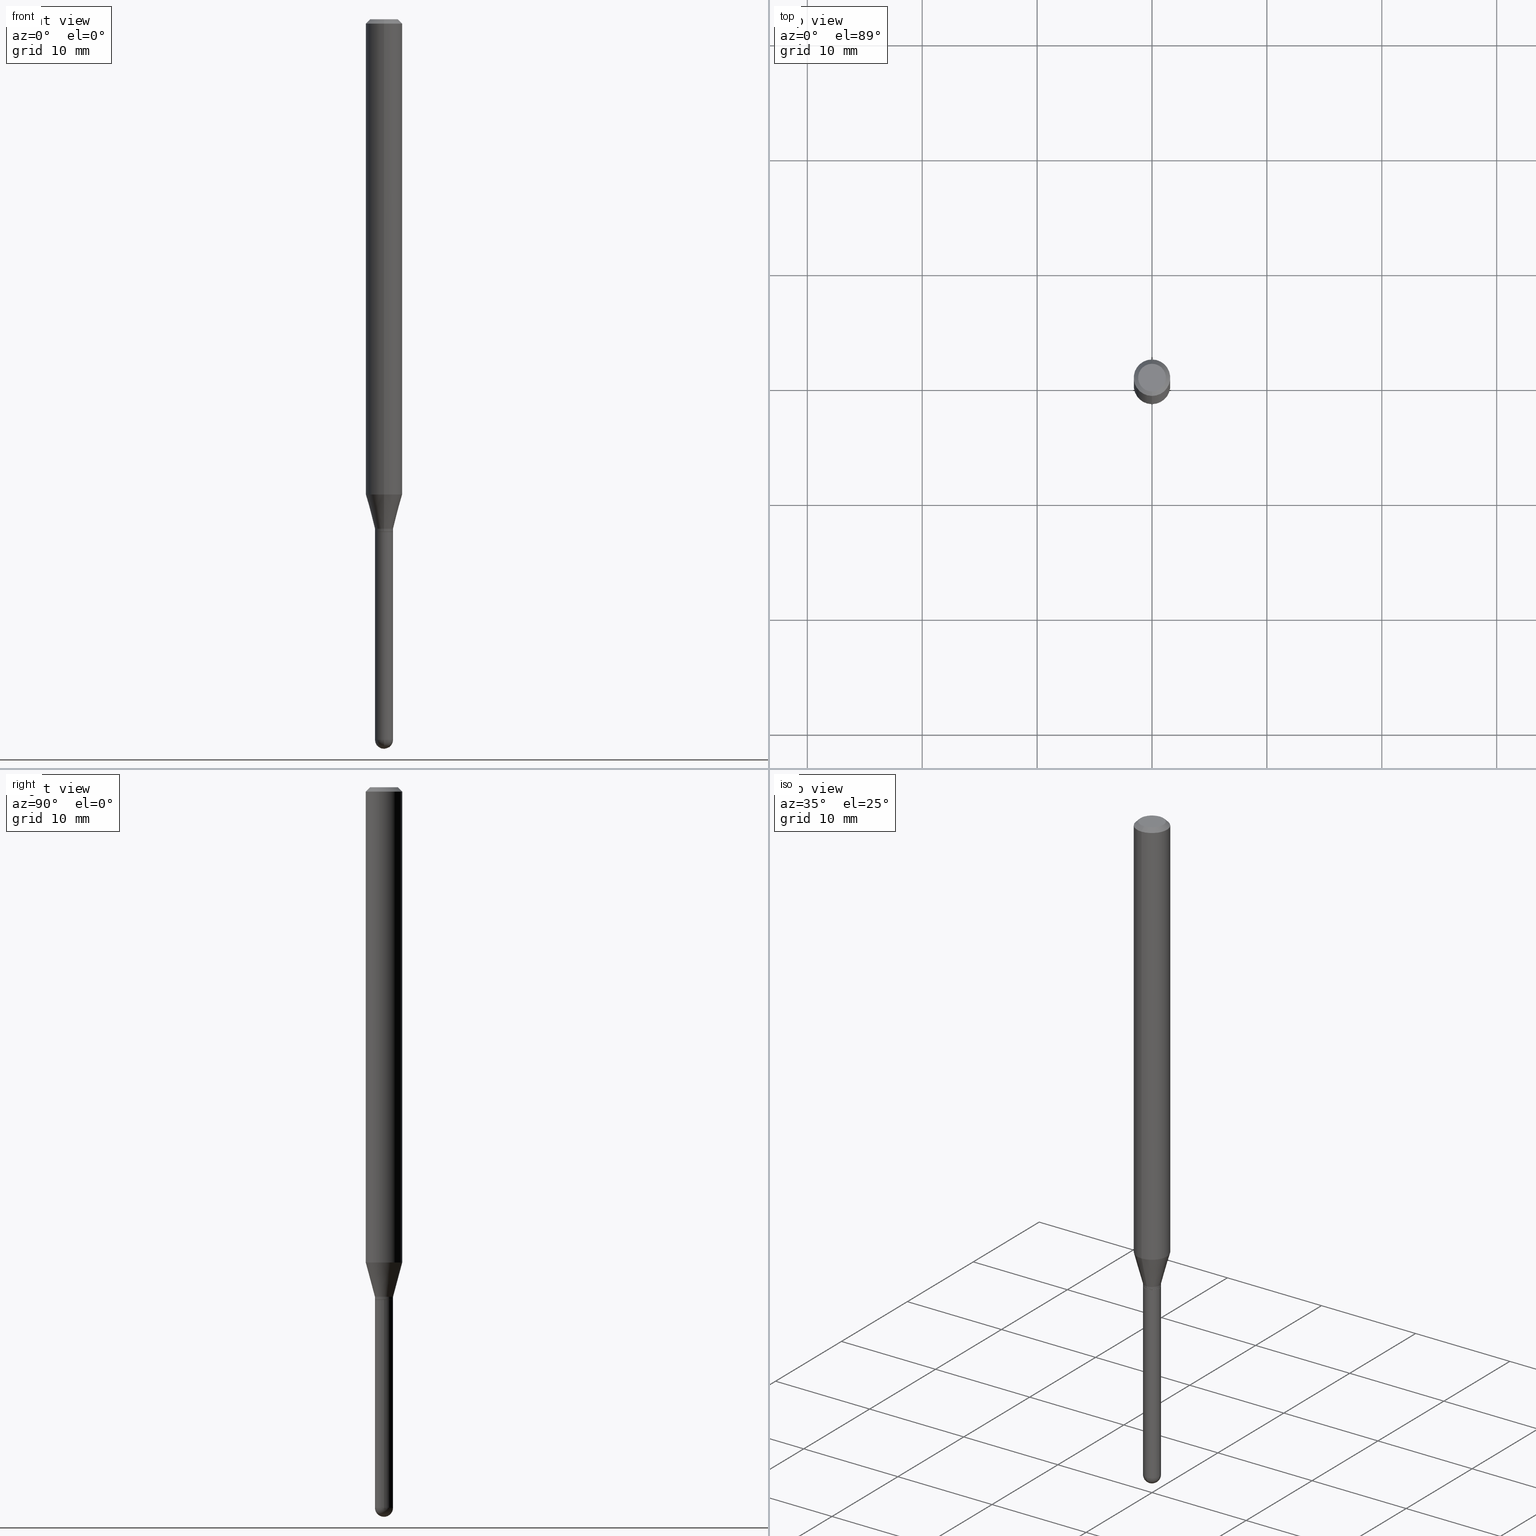
[diagram: canonical four-view strip — front | top / right | iso, engineering-drawing reading convention]
A machine part, canonical four-view strip (front | top / right | iso — engineering-drawing reading convention). The complete STEP part file that produces these views, byte-faithful:
ISO-10303-21;
HEADER;
FILE_DESCRIPTION (( 'STEP AP203' ),
    '1' );
FILE_NAME ('02786.STEP',
    '2024-03-07T21:31:25',
    ( '' ),
    ( '' ),
    'SwSTEP 2.0',
    'SolidWorks 2023',
    '' );
FILE_SCHEMA (( 'CONFIG_CONTROL_DESIGN' ));
ENDSEC;

DATA;
#1 = APPROVAL_PERSON_ORGANIZATION ( #100, #16, #207 ) ;
#2 = EDGE_LOOP ( 'NONE', ( #249, #487, #213, #205 ) ) ;
#3 = LINE ( 'NONE', #278, #430 ) ;
#4 = ORIENTED_EDGE ( 'NONE', *, *, #309, .T. ) ;
#5 = MANIFOLD_SOLID_BREP ( 'Body-Move/Copy2[2]', #175 ) ;
#6 = APPLICATION_CONTEXT ( 'configuration controlled 3d designs of mechanical parts and assemblies' ) ;
#7 = DIRECTION ( 'NONE',  ( -6.982962677686265922E-15, -1.000000000000000000, 3.491507680824188299E-15 ) ) ;
#8 = ORIENTED_EDGE ( 'NONE', *, *, #325, .F. ) ;
#9 = CIRCLE ( 'NONE', #117, 0.03099999999999992345 ) ;
#10 = DIRECTION ( 'NONE',  ( -2.445468806185136597E-29, 3.491481338843145583E-15, 1.000000000000000000 ) ) ;
#11 = ORIENTED_EDGE ( 'NONE', *, *, #348, .T. ) ;
#12 = LOCAL_TIME ( 16, 31, 25.00000000000000000, #95 ) ;
#13 = EDGE_LOOP ( 'NONE', ( #51, #90 ) ) ;
#14 = VERTEX_POINT ( 'NONE', #68 ) ;
#15 = AXIS2_PLACEMENT_3D ( 'NONE', #427, #466, #35 ) ;
#16 = APPROVAL ( #293, 'UNSPECIFIED' ) ;
#17 = CARTESIAN_POINT ( 'NONE',  ( 0.000000000000000000, 0.000000000000000000, 0.000000000000000000 ) ) ;
#18 = DIRECTION ( 'NONE',  ( -1.000000000000000000, 6.982962677686265922E-15, -4.883557194083112340E-29 ) ) ;
#19 = CALENDAR_DATE ( 2024, 7, 3 ) ;
#20 = EDGE_CURVE ( 'NONE', #472, #400, #196, .T. ) ;
#21 = DIRECTION ( 'NONE',  ( -2.445450411678088822E-29, 3.491507680824188299E-15, 1.000000000000000000 ) ) ;
#22 = PERSON_AND_ORGANIZATION ( #327, #338 ) ;
#23 = AXIS2_PLACEMENT_3D ( 'NONE', #232, #223, #351 ) ;
#24 = CYLINDRICAL_SURFACE ( 'NONE', #313, 0.03099999999999992345 ) ;
#25 = CALENDAR_DATE ( 2024, 7, 3 ) ;
#26 = DIRECTION ( 'NONE',  ( 1.000000000000000000, -6.982962677686270655E-15, 0.000000000000000000 ) ) ;
#27 = DIRECTION ( 'NONE',  ( 2.445450411678088822E-29, -3.491507680824188299E-15, -1.000000000000000000 ) ) ;
#28 = LINE ( 'NONE', #345, #503 ) ;
#29 = CARTESIAN_POINT ( 'NONE',  ( 0.000000000000000000, 0.000000000000000000, 0.000000000000000000 ) ) ;
#30 = CARTESIAN_POINT ( 'NONE',  ( 4.440892098501026509E-16, 0.06249999999999995143, -0.01500000000000054588 ) ) ;
#31 = VECTOR ( 'NONE', #421, 39.37007874015748143 ) ;
#32 = CIRCLE ( 'NONE', #370, 0.06250000000000000000 ) ;
#33 = DIRECTION ( 'NONE',  ( -6.982962677686266711E-15, -1.000000000000000000, 3.491507680824188693E-15 ) ) ;
#34 = CARTESIAN_POINT ( 'NONE',  ( 3.321787289678878569E-16, 0.03099999999999382069, -1.745999999999999996 ) ) ;
#35 = DIRECTION ( 'NONE',  ( 1.000000000000000000, -6.982962677686270655E-15, 0.000000000000000000 ) ) ;
#36 = LINE ( 'NONE', #391, #481 ) ;
#37 = FACE_OUTER_BOUND ( 'NONE', #124, .T. ) ;
#38 = AXIS2_PLACEMENT_3D ( 'NONE', #291, #480, #97 ) ;
#39 = DIRECTION ( 'NONE',  ( 1.839019923739598738E-15, 0.2588190451025247363, 0.9659258262890673130 ) ) ;
#40 = FACE_OUTER_BOUND ( 'NONE', #292, .T. ) ;
#41 = VERTEX_POINT ( 'NONE', #416 ) ;
#42 = DIRECTION ( 'NONE',  ( 2.445450411678088822E-29, -3.491507680824188299E-15, -1.000000000000000000 ) ) ;
#43 = ORIENTED_EDGE ( 'NONE', *, *, #242, .F. ) ;
#44 = DIRECTION ( 'NONE',  ( 4.937700262164548042E-15, 0.7071067811865451302, -0.7071067811865499042 ) ) ;
#45 = EDGE_LOOP ( 'NONE', ( #96, #285, #176, #394 ) ) ;
#46 = AXIS2_PLACEMENT_3D ( 'NONE', #440, #174, #426 ) ;
#47 = CARTESIAN_POINT ( 'NONE',  ( 6.035211466974647334E-29, -8.624263830681084699E-15, -2.469000000000000306 ) ) ;
#48 = EDGE_CURVE ( 'NONE', #255, #14, #301, .T. ) ;
#49 = ORIENTED_EDGE ( 'NONE', *, *, #170, .T. ) ;
#50 = CIRCLE ( 'NONE', #321, 0.03099999999999999978 ) ;
#51 = ORIENTED_EDGE ( 'NONE', *, *, #309, .F. ) ;
#52 = CC_DESIGN_PERSON_AND_ORGANIZATION_ASSIGNMENT ( #491, #453, ( #203 ) ) ;
#53 = DIRECTION ( 'NONE',  ( -6.982962677686265922E-15, -1.000000000000000000, 3.483106191921935554E-15 ) ) ;
#54 = AXIS2_PLACEMENT_3D ( 'NONE', #47, #264, #111 ) ;
#55 = VERTEX_POINT ( 'NONE', #34 ) ;
#56 = AXIS2_PLACEMENT_3D ( 'NONE', #448, #134, #102 ) ;
#57 = DIRECTION ( 'NONE',  ( -1.000000000000000000, 6.982962677686265922E-15, -4.876176775795935793E-29 ) ) ;
#58 = CARTESIAN_POINT ( 'NONE',  ( 6.035211466974647334E-29, -8.624263830681084699E-15, -2.469000000000000306 ) ) ;
#59 =( LENGTH_UNIT ( ) NAMED_UNIT ( * ) SI_UNIT ( $, .METRE. ) );
#60 = CARTESIAN_POINT ( 'NONE',  ( -2.164718430082737148E-16, -0.03099999999999992345, 1.082367381055495672E-16 ) ) ;
#61 = EDGE_CURVE ( 'NONE', #432, #55, #110, .T. ) ;
#62 = CONICAL_SURFACE ( 'NONE', #46, 0.03099999999999992345, 0.2617993877991500740 ) ;
#63 = DIRECTION ( 'NONE',  ( -2.445468806185136597E-29, 3.491481338843145583E-15, 1.000000000000000000 ) ) ;
#64 = CARTESIAN_POINT ( 'NONE',  ( -2.129803616693881339E-16, -0.03050000000000612638, -1.756000000000000005 ) ) ;
#65 = DIRECTION ( 'NONE',  ( -2.445468806185136877E-29, 3.491481338843145188E-15, 1.000000000000000000 ) ) ;
#66 = CARTESIAN_POINT ( 'NONE',  ( 6.037862482471103495E-29, -8.620467425603728566E-15, -2.469000000000000306 ) ) ;
#67 = ADVANCED_FACE ( 'NONE', ( #464 ), #346, .T. ) ;
#68 = CARTESIAN_POINT ( 'NONE',  ( -2.164718430082309931E-16, -0.03100000000000601580, -1.745999999999999996 ) ) ;
#69 = CC_DESIGN_DATE_AND_TIME_ASSIGNMENT ( #445, #103, ( #206 ) ) ;
#70 = EDGE_CURVE ( 'NONE', #441, #237, #268, .T. ) ;
#71 = CARTESIAN_POINT ( 'NONE',  ( 0.03099999999999999978, -2.164718430082742572E-16, 1.511614800496739984E-30 ) ) ;
#72 = DIRECTION ( 'NONE',  ( -2.445450411678088822E-29, 3.491507680824188299E-15, 1.000000000000000000 ) ) ;
#73 = AXIS2_PLACEMENT_3D ( 'NONE', #219, #378, #271 ) ;
#74 = VECTOR ( 'NONE', #383, 39.37007874015748143 ) ;
#75 = ADVANCED_FACE ( 'NONE', ( #329 ), #62, .T. ) ;
#76 = DIRECTION ( 'NONE',  ( -2.445450411678088822E-29, 3.491507680824188299E-15, 1.000000000000000000 ) ) ;
#77 = CARTESIAN_POINT ( 'NONE',  ( 4.269756418789942781E-29, -6.096172410719032689E-15, -1.745999999999999996 ) ) ;
#78 = LINE ( 'NONE', #433, #91 ) ;
#79 = DIRECTION ( 'NONE',  ( -4.851104656540964275E-15, -0.7071067811865500152, -0.7071067811865450192 ) ) ;
#80 = PRODUCT ( '02786', '02786', '', ( #350 ) ) ;
#81 = CARTESIAN_POINT ( 'NONE',  ( 0.000000000000000000, 0.000000000000000000, 0.000000000000000000 ) ) ;
#82 = DIRECTION ( 'NONE',  ( -6.982962677686266711E-15, -1.000000000000000000, 3.491507680824188693E-15 ) ) ;
#83 = ORIENTED_EDGE ( 'NONE', *, *, #234, .T. ) ;
#84 = CONICAL_SURFACE ( 'NONE', #422, 0.06250000000000000000, 0.7853981633974483900 ) ;
#85 = CARTESIAN_POINT ( 'NONE',  ( -0.03099999999999999978, -7.155486080220514781E-15, -1.756000000000000005 ) ) ;
#86 = ORIENTED_EDGE ( 'NONE', *, *, #483, .T. ) ;
#87 = FACE_OUTER_BOUND ( 'NONE', #245, .T. ) ;
#88 = ORIENTED_EDGE ( 'NONE', *, *, #380, .F. ) ;
#89 = EDGE_CURVE ( 'NONE', #55, #405, #36, .T. ) ;
#90 = ORIENTED_EDGE ( 'NONE', *, *, #505, .F. ) ;
#91 = VECTOR ( 'NONE', #44, 39.37007874015748143 ) ;
#92 = EDGE_CURVE ( 'NONE', #405, #216, #319, .T. ) ;
#93 = ORIENTED_EDGE ( 'NONE', *, *, #184, .F. ) ;
#94 = CC_DESIGN_APPROVAL ( #224, ( #203 ) ) ;
#95 = COORDINATED_UNIVERSAL_TIME_OFFSET ( 5, 0, .BEHIND. ) ;
#96 = ORIENTED_EDGE ( 'NONE', *, *, #89, .F. ) ;
#97 = DIRECTION ( 'NONE',  ( -6.982962677686265922E-15, -1.000000000000000000, 4.370956789862821150E-15 ) ) ;
#98 = PLANE ( 'NONE',  #408 ) ;
#99 = VERTEX_POINT ( 'NONE', #151 ) ;
#100 = PERSON_AND_ORGANIZATION ( #327, #338 ) ;
#101 = CIRCLE ( 'NONE', #23, 0.03099999999999999978 ) ;
#102 = DIRECTION ( 'NONE',  ( -6.982962677686265922E-15, -1.000000000000000000, 0.000000000000000000 ) ) ;
#103 = DATE_TIME_ROLE ( 'creation_date' ) ;
#104 = UNCERTAINTY_MEASURE_WITH_UNIT (LENGTH_MEASURE( 1.000000000000000082E-05 ), #373, 'distance_accuracy_value', 'NONE');
#105 = FACE_OUTER_BOUND ( 'NONE', #360, .T. ) ;
#106 = ORIENTED_EDGE ( 'NONE', *, *, #366, .T. ) ;
#107 = FACE_OUTER_BOUND ( 'NONE', #484, .T. ) ;
#108 = ORIENTED_EDGE ( 'NONE', *, *, #483, .F. ) ;
#109 = AXIS2_PLACEMENT_3D ( 'NONE', #419, #344, #142 ) ;
#110 = LINE ( 'NONE', #152, #31 ) ;
#111 = DIRECTION ( 'NONE',  ( 6.982962677686265922E-15, 1.000000000000000000, 0.000000000000000000 ) ) ;
#112 = DIRECTION ( 'NONE',  ( -6.982962677686265922E-15, -1.000000000000000000, 0.000000000000000000 ) ) ;
#113 = DIRECTION ( 'NONE',  ( -6.982962677686265922E-15, -1.000000000000000000, 3.491507680824188299E-15 ) ) ;
#114 = EDGE_CURVE ( 'NONE', #55, #14, #225, .T. ) ;
#115 = DIRECTION ( 'NONE',  ( -2.445450411678088822E-29, 3.491507680824188299E-15, 1.000000000000000000 ) ) ;
#116 = FACE_OUTER_BOUND ( 'NONE', #470, .T. ) ;
#117 = AXIS2_PLACEMENT_3D ( 'NONE', #460, #72, #227 ) ;
#118 = ORIENTED_EDGE ( 'NONE', *, *, #92, .T. ) ;
#119 = DIRECTION ( 'NONE',  ( -1.807323732225328562E-15, -0.2588190451025179639, 0.9659258262890690894 ) ) ;
#120 = CARTESIAN_POINT ( 'NONE',  ( 4.294210922906724285E-29, -6.131087487527274923E-15, -1.756000000000000005 ) ) ;
#121 = EDGE_CURVE ( 'NONE', #450, #240, #101, .T. ) ;
#122 = ORIENTED_EDGE ( 'NONE', *, *, #267, .F. ) ;
#123 = FACE_OUTER_BOUND ( 'NONE', #159, .T. ) ;
#124 = EDGE_LOOP ( 'NONE', ( #303, #11, #88, #279 ) ) ;
#125 = LOCAL_TIME ( 16, 31, 25.00000000000000000, #141 ) ;
#126 = VERTEX_POINT ( 'NONE', #305 ) ;
#127 = EDGE_CURVE ( 'NONE', #255, #432, #9, .T. ) ;
#128 = DIRECTION ( 'NONE',  ( 5.024295867788190974E-15, 0.7071067811865681119, 0.7071067811865270336 ) ) ;
#129 = VERTEX_POINT ( 'NONE', #308 ) ;
#130 = ORIENTED_EDGE ( 'NONE', *, *, #127, .T. ) ;
#131 = AXIS2_PLACEMENT_3D ( 'NONE', #314, #335, #488 ) ;
#132 = ORIENTED_EDGE ( 'NONE', *, *, #160, .F. ) ;
#133 = CARTESIAN_POINT ( 'NONE',  ( 0.000000000000000000, 0.000000000000000000, 0.000000000000000000 ) ) ;
#134 = DIRECTION ( 'NONE',  ( -2.445450411678088822E-29, 3.491507680824188299E-15, 1.000000000000000000 ) ) ;
#135 = APPLICATION_CONTEXT ( 'configuration controlled 3d designs of mechanical parts and assemblies' ) ;
#136 = VECTOR ( 'NONE', #473, 39.37007874015748143 ) ;
#137 = EDGE_CURVE ( 'NONE', #432, #255, #399, .T. ) ;
#138 = CALENDAR_DATE ( 2024, 7, 3 ) ;
#139 = CARTESIAN_POINT ( 'NONE',  ( 0.000000000000000000, 0.000000000000000000, 0.000000000000000000 ) ) ;
#140 = FACE_OUTER_BOUND ( 'NONE', #337, .T. ) ;
#141 = COORDINATED_UNIVERSAL_TIME_OFFSET ( 5, 0, .BEHIND. ) ;
#142 = DIRECTION ( 'NONE',  ( -6.982962677686265922E-15, -1.000000000000000000, 0.000000000000000000 ) ) ;
#143 = CC_DESIGN_PERSON_AND_ORGANIZATION_ASSIGNMENT ( #290, #446, ( #203 ) ) ;
#144 = DATE_AND_TIME ( #502, #467 ) ;
#145 = DIRECTION ( 'NONE',  ( -6.982962677686265922E-15, -1.000000000000000000, 3.483106191921935554E-15 ) ) ;
#146 = DIRECTION ( 'NONE',  ( -6.982962677686265922E-15, -1.000000000000000000, 3.491507680824188299E-15 ) ) ;
#147 = ORIENTED_EDGE ( 'NONE', *, *, #380, .T. ) ;
#148 = CARTESIAN_POINT ( 'NONE',  ( 4.440892098501021578E-16, 0.06249999999999429623, -1.628440399561580598 ) ) ;
#149 = DIRECTION ( 'NONE',  ( -2.445450411678088822E-29, 3.491507680824188299E-15, 1.000000000000000000 ) ) ;
#150 = LINE ( 'NONE', #504, #74 ) ;
#151 = CARTESIAN_POINT ( 'NONE',  ( 0.03099999999999999978, -7.592226171314421154E-15, -2.469000000000000306 ) ) ;
#152 = CARTESIAN_POINT ( 'NONE',  ( 2.202682480856304644E-16, 0.03099999999999992345, -1.082367381055495672E-16 ) ) ;
#153 = CARTESIAN_POINT ( 'NONE',  ( -2.164718430082314861E-16, -0.03100000000000615805, -1.755500000000000060 ) ) ;
#154 = VECTOR ( 'NONE', #128, 39.37007874015748143 ) ;
#155 = EDGE_CURVE ( 'NONE', #129, #362, #295, .T. ) ;
#156 = AXIS2_PLACEMENT_3D ( 'NONE', #81, #311, #113 ) ;
#157 = DIRECTION ( 'NONE',  ( -6.982962677686265922E-15, -1.000000000000000000, 0.000000000000000000 ) ) ;
#158 = SPHERICAL_SURFACE ( 'NONE', #131, 0.03099999999999960773 ) ;
#159 = EDGE_LOOP ( 'NONE', ( #8, #287, #436, #86 ) ) ;
#160 = EDGE_CURVE ( 'NONE', #99, #450, #418, .T. ) ;
#161 = DIRECTION ( 'NONE',  ( -2.445468806185136877E-29, 3.491481338843145188E-15, 1.000000000000000000 ) ) ;
#162 = ORIENTED_EDGE ( 'NONE', *, *, #61, .T. ) ;
#163 = EDGE_LOOP ( 'NONE', ( #204, #367, #395, #132, #147 ) ) ;
#164 = COORDINATED_UNIVERSAL_TIME_OFFSET ( 5, 0, .BEHIND. ) ;
#165 = ADVANCED_FACE ( 'NONE', ( #187 ), #220, .F. ) ;
#166 = CIRCLE ( 'NONE', #462, 0.03099999999999999978 ) ;
#167 = DIRECTION ( 'NONE',  ( 1.000000000000000000, -6.982962677686266711E-15, 4.876176775795935232E-29 ) ) ;
#168 = LINE ( 'NONE', #282, #202 ) ;
#169 = AXIS2_PLACEMENT_3D ( 'NONE', #29, #191, #456 ) ;
#170 = EDGE_CURVE ( 'NONE', #126, #432, #457, .T. ) ;
#171 = ORIENTED_EDGE ( 'NONE', *, *, #48, .F. ) ;
#172 = ORIENTED_EDGE ( 'NONE', *, *, #184, .T. ) ;
#173 = MANIFOLD_SOLID_BREP ( 'Body-Move/Copy2[1]', #376 ) ;
#174 = DIRECTION ( 'NONE',  ( -2.445450411678088822E-29, 3.491507680824188299E-15, 1.000000000000000000 ) ) ;
#175 = CLOSED_SHELL ( 'NONE', ( #463, #67, #479, #257, #435, #75, #425, #253, #193, #165, #217, #506 ) ) ;
#176 = ORIENTED_EDGE ( 'NONE', *, *, #270, .T. ) ;
#177 = AXIS2_PLACEMENT_3D ( 'NONE', #133, #381, #444 ) ;
#178 = DIRECTION ( 'NONE',  ( -6.982962677686265922E-15, -1.000000000000000000, 3.491507680824188299E-15 ) ) ;
#179 = APPLICATION_PROTOCOL_DEFINITION ( 'international standard', 'config_control_design', 1994, #6 ) ;
#180 = APPROVAL_DATE_TIME ( #485, #224 ) ;
#181 = AXIS2_PLACEMENT_3D ( 'NONE', #192, #115, #112 ) ;
#182 = AXIS2_PLACEMENT_3D ( 'NONE', #261, #489, #415 ) ;
#183 = AXIS2_PLACEMENT_3D ( 'NONE', #58, #18, #298 ) ;
#184 = EDGE_CURVE ( 'NONE', #41, #237, #166, .T. ) ;
#185 = SPHERICAL_SURFACE ( 'NONE', #183, 0.03099999999999960773 ) ;
#186 = CARTESIAN_POINT ( 'NONE',  ( 2.202682480856726685E-16, 0.03099999999999368538, -1.755500000000000060 ) ) ;
#187 = FACE_OUTER_BOUND ( 'NONE', #13, .T. ) ;
#188 = CARTESIAN_POINT ( 'NONE',  ( 4.294243223661099859E-29, -6.131041231008564292E-15, -1.756000000000000005 ) ) ;
#189 = AXIS2_PLACEMENT_3D ( 'NONE', #417, #222, #145 ) ;
#190 = APPROVAL_PERSON_ORGANIZATION ( #22, #224, #214 ) ;
#191 = DIRECTION ( 'NONE',  ( 0.000000000000000000, 0.000000000000000000, 1.000000000000000000 ) ) ;
#192 = CARTESIAN_POINT ( 'NONE',  ( 4.294210922906724285E-29, -6.131087487527274923E-15, -1.756000000000000005 ) ) ;
#193 = ADVANCED_FACE ( 'NONE', ( #40 ), #469, .F. ) ;
#194 = CYLINDRICAL_SURFACE ( 'NONE', #510, 0.06250000000000000000 ) ;
#195 = ORIENTED_EDGE ( 'NONE', *, *, #366, .F. ) ;
#196 = CIRCLE ( 'NONE', #189, 0.06250000000000000000 ) ;
#197 = CARTESIAN_POINT ( 'NONE',  ( -4.364351673553520291E-16, -0.06250000000000571765, -1.628440399561579932 ) ) ;
#198 = ORIENTED_EDGE ( 'NONE', *, *, #505, .T. ) ;
#199 = DIRECTION ( 'NONE',  ( 2.445450411678088542E-29, -3.491507680824188299E-15, -1.000000000000000000 ) ) ;
#200 = ORIENTED_EDGE ( 'NONE', *, *, #270, .F. ) ;
#201 = ORIENTED_EDGE ( 'NONE', *, *, #348, .F. ) ;
#202 = VECTOR ( 'NONE', #119, 39.37007874015748854 ) ;
#203 = PRODUCT_DEFINITION_FORMATION_WITH_SPECIFIED_SOURCE ( 'ANY', '', #80, .NOT_KNOWN. ) ;
#204 = ORIENTED_EDGE ( 'NONE', *, *, #385, .T. ) ;
#205 = ORIENTED_EDGE ( 'NONE', *, *, #229, .F. ) ;
#206 = PRODUCT_DEFINITION ( 'UNKNOWN', '', #203, #411 ) ;
#207 = APPROVAL_ROLE ( '' ) ;
#208 = AXIS2_PLACEMENT_3D ( 'NONE', #382, #343, #146 ) ;
#209 = FACE_OUTER_BOUND ( 'NONE', #320, .T. ) ;
#210 = EDGE_LOOP ( 'NONE', ( #122, #118, #251, #108 ) ) ;
#211 = APPROVAL_PERSON_ORGANIZATION ( #265, #412, #461 ) ;
#212 = DIRECTION ( 'NONE',  ( 6.982962677686265922E-15, 1.000000000000000000, -3.483106191921935554E-15 ) ) ;
#213 = ORIENTED_EDGE ( 'NONE', *, *, #20, .T. ) ;
#214 = APPROVAL_ROLE ( '' ) ;
#215 = DATE_TIME_ROLE ( 'classification_date' ) ;
#216 = VERTEX_POINT ( 'NONE', #197 ) ;
#217 = ADVANCED_FACE ( 'NONE', ( #87 ), #310, .T. ) ;
#218 = AXIS2_PLACEMENT_3D ( 'NONE', #120, #243, #284 ) ;
#219 = CARTESIAN_POINT ( 'NONE',  ( 6.035211466974647334E-29, -8.624263830681084699E-15, -2.469000000000000306 ) ) ;
#220 = PLANE ( 'NONE',  #208 ) ;
#221 = PERSON_AND_ORGANIZATION_ROLE ( 'design_owner' ) ;
#222 = DIRECTION ( 'NONE',  ( -2.445450411678088822E-29, 3.491507680824188299E-15, 1.000000000000000000 ) ) ;
#223 = DIRECTION ( 'NONE',  ( -2.445468806185136597E-29, 3.491481338843145583E-15, 1.000000000000000000 ) ) ;
#224 = APPROVAL ( #451, 'UNSPECIFIED' ) ;
#225 = CIRCLE ( 'NONE', #109, 0.03099999999999992345 ) ;
#226 = FACE_OUTER_BOUND ( 'NONE', #210, .T. ) ;
#227 = DIRECTION ( 'NONE',  ( -6.982962677686265922E-15, -1.000000000000000000, 0.000000000000000000 ) ) ;
#228 = SECURITY_CLASSIFICATION ( '', '', #289 ) ;
#229 = EDGE_CURVE ( 'NONE', #362, #400, #78, .T. ) ;
#230 = DIRECTION ( 'NONE',  ( -6.982962677686265922E-15, -1.000000000000000000, 4.370956789862821150E-15 ) ) ;
#231 = EDGE_CURVE ( 'NONE', #237, #99, #238, .T. ) ;
#232 = CARTESIAN_POINT ( 'NONE',  ( 4.294243223661099859E-29, -6.131041231008564292E-15, -1.756000000000000005 ) ) ;
#233 = DIRECTION ( 'NONE',  ( -2.445450411678088822E-29, 3.491507680824188299E-15, 1.000000000000000000 ) ) ;
#234 = EDGE_CURVE ( 'NONE', #216, #405, #252, .T. ) ;
#235 = FACE_OUTER_BOUND ( 'NONE', #317, .T. ) ;
#236 = DIRECTION ( 'NONE',  ( 6.982962677686265922E-15, 1.000000000000000000, -3.491507680824188299E-15 ) ) ;
#237 = VERTEX_POINT ( 'NONE', #431 ) ;
#238 = CIRCLE ( 'NONE', #15, 0.03099999999999999978 ) ;
#239 = DIRECTION ( 'NONE',  ( 1.000000000000000000, -6.982962677686270655E-15, 0.000000000000000000 ) ) ;
#240 = VERTEX_POINT ( 'NONE', #85 ) ;
#241 = PERSON_AND_ORGANIZATION_ROLE ( 'creator' ) ;
#242 = EDGE_CURVE ( 'NONE', #41, #240, #3, .T. ) ;
#243 = DIRECTION ( 'NONE',  ( -2.445450411678088822E-29, 3.491507680824188299E-15, 1.000000000000000000 ) ) ;
#244 = ORIENTED_EDGE ( 'NONE', *, *, #234, .F. ) ;
#245 = EDGE_LOOP ( 'NONE', ( #397, #198, #326, #482 ) ) ;
#246 = VECTOR ( 'NONE', #79, 39.37007874015748143 ) ;
#247 = AXIS2_PLACEMENT_3D ( 'NONE', #77, #342, #157 ) ;
#248 = EDGE_CURVE ( 'NONE', #362, #129, #262, .T. ) ;
#249 = ORIENTED_EDGE ( 'NONE', *, *, #155, .F. ) ;
#250 = DIRECTION ( 'NONE',  ( 2.438088387897960049E-29, -3.491481338843145188E-15, -1.000000000000000000 ) ) ;
#251 = ORIENTED_EDGE ( 'NONE', *, *, #375, .T. ) ;
#252 = CIRCLE ( 'NONE', #300, 0.06250000000000000000 ) ;
#253 = ADVANCED_FACE ( 'NONE', ( #123 ), #84, .T. ) ;
#254 =( NAMED_UNIT ( * ) SI_UNIT ( $, .STERADIAN. ) SOLID_ANGLE_UNIT ( ) );
#255 = VERTEX_POINT ( 'NONE', #153 ) ;
#256 = LOCAL_TIME ( 16, 31, 25.00000000000000000, #164 ) ;
#257 = ADVANCED_FACE ( 'NONE', ( #428 ), #194, .T. ) ;
#258 = ORIENTED_EDGE ( 'NONE', *, *, #127, .F. ) ;
#259 = CYLINDRICAL_SURFACE ( 'NONE', #280, 0.03099999999999999978 ) ;
#260 = COORDINATED_UNIVERSAL_TIME_OFFSET ( 5, 0, .BEHIND. ) ;
#261 = CARTESIAN_POINT ( 'NONE',  ( 0.000000000000000000, 0.000000000000000000, 0.000000000000000000 ) ) ;
#262 = CIRCLE ( 'NONE', #354, 0.04749999999999999362 ) ;
#263 = CONICAL_SURFACE ( 'NONE', #247, 0.03099999999999992345, 0.2617993877991500740 ) ;
#264 = DIRECTION ( 'NONE',  ( 1.000000000000000000, -6.982962677686265922E-15, 4.883557194083112340E-29 ) ) ;
#265 = PERSON_AND_ORGANIZATION ( #327, #338 ) ;
#266 = CARTESIAN_POINT ( 'NONE',  ( 6.037862482471103495E-29, -8.620467425603728566E-15, -2.469000000000000306 ) ) ;
#267 = EDGE_CURVE ( 'NONE', #405, #400, #318, .T. ) ;
#268 = CIRCLE ( 'NONE', #73, 0.03099999999999960773 ) ;
#269 = CARTESIAN_POINT ( 'NONE',  ( 4.292988197700885799E-29, -6.129341733686862929E-15, -1.755500000000000060 ) ) ;
#270 = EDGE_CURVE ( 'NONE', #14, #216, #168, .T. ) ;
#271 = DIRECTION ( 'NONE',  ( -7.105427357601000281E-15, -1.000000000000000000, 0.000000000000000000 ) ) ;
#272 = CARTESIAN_POINT ( 'NONE',  ( 6.112346507714612851E-29, -8.730601549646543009E-15, -2.500000000000000000 ) ) ;
#273 = CARTESIAN_POINT ( 'NONE',  ( -4.287811248607203282E-16, -0.06250000000000005551, -0.01500000000000011047 ) ) ;
#274 = CC_DESIGN_DATE_AND_TIME_ASSIGNMENT ( #414, #215, ( #228 ) ) ;
#275 = DIRECTION ( 'NONE',  ( -2.445468806185136597E-29, 3.491481338843145583E-15, 1.000000000000000000 ) ) ;
#276 = CARTESIAN_POINT ( 'NONE',  ( 3.668175617517213895E-31, -5.237261521236396735E-17, -0.01500000000000032904 ) ) ;
#277 = ORIENTED_EDGE ( 'NONE', *, *, #20, .F. ) ;
#278 = CARTESIAN_POINT ( 'NONE',  ( -0.03099999999999999978, 2.202682480856310560E-16, -1.524869877979020612E-30 ) ) ;
#279 = ORIENTED_EDGE ( 'NONE', *, *, #231, .F. ) ;
#280 = AXIS2_PLACEMENT_3D ( 'NONE', #139, #63, #167 ) ;
#281 = CIRCLE ( 'NONE', #447, 0.03099999999999999978 ) ;
#282 = CARTESIAN_POINT ( 'NONE',  ( -2.164718430082309931E-16, -0.03100000000000601580, -1.745999999999999996 ) ) ;
#283 = ORIENTED_EDGE ( 'NONE', *, *, #137, .T. ) ;
#284 = DIRECTION ( 'NONE',  ( -6.982962677686265922E-15, -1.000000000000000000, 0.000000000000000000 ) ) ;
#285 = ORIENTED_EDGE ( 'NONE', *, *, #114, .T. ) ;
#286 = CC_DESIGN_PERSON_AND_ORGANIZATION_ASSIGNMENT ( #498, #221, ( #80 ) ) ;
#287 = ORIENTED_EDGE ( 'NONE', *, *, #248, .F. ) ;
#288 = VECTOR ( 'NONE', #65, 39.37007874015748143 ) ;
#289 = SECURITY_CLASSIFICATION_LEVEL ( 'unclassified' ) ;
#290 = PERSON_AND_ORGANIZATION ( #327, #338 ) ;
#291 = CARTESIAN_POINT ( 'NONE',  ( 3.982270245501097907E-29, -5.685712162833668296E-15, -1.628440399561580154 ) ) ;
#292 = EDGE_LOOP ( 'NONE', ( #369, #434 ) ) ;
#293 = APPROVAL_STATUS ( 'not_yet_approved' ) ;
#294 = CARTESIAN_POINT ( 'NONE',  ( -4.364351673553912750E-16, -0.06250000000000005551, -0.01500000000000011047 ) ) ;
#295 = CIRCLE ( 'NONE', #390, 0.04749999999999999362 ) ;
#296 = CARTESIAN_POINT ( 'NONE',  ( 3.668175617517213895E-31, -5.237261521236396735E-17, -0.01500000000000032904 ) ) ;
#297 = CC_DESIGN_APPROVAL ( #16, ( #228 ) ) ;
#298 = DIRECTION ( 'NONE',  ( 6.982962677686265922E-15, 1.000000000000000000, 0.000000000000000000 ) ) ;
#299 = EDGE_LOOP ( 'NONE', ( #4, #49, #258, #372 ) ) ;
#300 = AXIS2_PLACEMENT_3D ( 'NONE', #471, #358, #230 ) ;
#301 = LINE ( 'NONE', #60, #455 ) ;
#302 = AXIS2_PLACEMENT_3D ( 'NONE', #266, #275, #508 ) ;
#303 = ORIENTED_EDGE ( 'NONE', *, *, #70, .F. ) ;
#304 = CARTESIAN_POINT ( 'NONE',  ( 4.269756418789942781E-29, -6.096172410719032689E-15, -1.745999999999999996 ) ) ;
#305 = CARTESIAN_POINT ( 'NONE',  ( 2.184918912462734271E-16, 0.03049999999999386882, -1.756000000000000005 ) ) ;
#306 = APPLICATION_PROTOCOL_DEFINITION ( 'international standard', 'config_control_design', 1994, #135 ) ;
#307 = DIRECTION ( 'NONE',  ( -2.445450411678088822E-29, 3.491507680824188299E-15, 1.000000000000000000 ) ) ;
#308 = CARTESIAN_POINT ( 'NONE',  ( -3.773273898774340269E-16, -0.04749999999999999362, -1.622990816289112288E-16 ) ) ;
#309 = EDGE_CURVE ( 'NONE', #477, #126, #492, .T. ) ;
#310 = CONICAL_SURFACE ( 'NONE', #218, 0.03049999999999999586, 0.7853981633974739252 ) ;
#311 = DIRECTION ( 'NONE',  ( -2.445450411678088822E-29, 3.491507680824188299E-15, 1.000000000000000000 ) ) ;
#312 = LINE ( 'NONE', #273, #246 ) ;
#313 = AXIS2_PLACEMENT_3D ( 'NONE', #17, #449, #178 ) ;
#314 = CARTESIAN_POINT ( 'NONE',  ( 6.035211466974647334E-29, -8.624263830681084699E-15, -2.469000000000000306 ) ) ;
#315 = ORIENTED_EDGE ( 'NONE', *, *, #89, .T. ) ;
#316 = CARTESIAN_POINT ( 'NONE',  ( 6.037862482471103495E-29, -8.620467425603728566E-15, -2.469000000000000306 ) ) ;
#317 = EDGE_LOOP ( 'NONE', ( #201, #429, #93, #359 ) ) ;
#318 = LINE ( 'NONE', #393, #136 ) ;
#319 = CIRCLE ( 'NONE', #38, 0.06250000000000000000 ) ;
#320 = EDGE_LOOP ( 'NONE', ( #130, #162, #374, #171 ) ) ;
#321 = AXIS2_PLACEMENT_3D ( 'NONE', #188, #379, #26 ) ;
#322 = CARTESIAN_POINT ( 'NONE',  ( 0.000000000000000000, 0.000000000000000000, 0.000000000000000000 ) ) ;
#323 = ORIENTED_EDGE ( 'NONE', *, *, #61, .F. ) ;
#324 = CC_DESIGN_PERSON_AND_ORGANIZATION_ASSIGNMENT ( #365, #241, ( #206 ) ) ;
#325 = EDGE_CURVE ( 'NONE', #129, #472, #312, .T. ) ;
#326 = ORIENTED_EDGE ( 'NONE', *, *, #398, .T. ) ;
#327 = PERSON ( 'UNSPECIFIED', 'UNSPECIFIED', 'UNSPECIFIED', ('UNSPECIFIED'), ('UNSPECIFIED'), ('UNSPECIFIED') ) ;
#328 = CALENDAR_DATE ( 2024, 7, 3 ) ;
#329 = FACE_OUTER_BOUND ( 'NONE', #45, .T. ) ;
#330 = ADVANCED_FACE ( 'NONE', ( #37 ), #158, .T. ) ;
#331 = PERSON_AND_ORGANIZATION_ROLE ( 'classification_officer' ) ;
#332 = DIMENSIONAL_EXPONENTS ( 1.000000000000000000, 0.000000000000000000, 0.000000000000000000, 0.000000000000000000, 0.000000000000000000, 0.000000000000000000, 0.000000000000000000 ) ;
#333 = ORIENTED_EDGE ( 'NONE', *, *, #407, .T. ) ;
#334 = CARTESIAN_POINT ( 'NONE',  ( 3.668175617517213895E-31, -5.237261521236396735E-17, -0.01500000000000032904 ) ) ;
#335 = DIRECTION ( 'NONE',  ( -1.000000000000000000, 6.982962677686265922E-15, -4.883557194083112340E-29 ) ) ;
#336 = CYLINDRICAL_SURFACE ( 'NONE', #182, 0.03099999999999999978 ) ;
#337 = EDGE_LOOP ( 'NONE', ( #474, #106 ) ) ;
#338 = ORGANIZATION ( 'UNSPECIFIED', 'UNSPECIFIED', '' ) ;
#339 = ADVANCED_FACE ( 'NONE', ( #355 ), #259, .T. ) ;
#340 =( NAMED_UNIT ( * ) PLANE_ANGLE_UNIT ( ) SI_UNIT ( $, .RADIAN. ) );
#341 = CARTESIAN_POINT ( 'NONE',  ( 8.024640285182108864E-45, -1.145723219647634660E-30, -3.281456964680601394E-16 ) ) ;
#342 = DIRECTION ( 'NONE',  ( -2.445450411678088822E-29, 3.491507680824188299E-15, 1.000000000000000000 ) ) ;
#343 = DIRECTION ( 'NONE',  ( -2.445450411678088542E-29, 3.491507680824188299E-15, 1.000000000000000000 ) ) ;
#344 = DIRECTION ( 'NONE',  ( -2.445450411678088822E-29, 3.491507680824188299E-15, 1.000000000000000000 ) ) ;
#345 = CARTESIAN_POINT ( 'NONE',  ( -4.364351673553916201E-16, -0.06250000000000000000, 2.182192300515117687E-16 ) ) ;
#346 = CONICAL_SURFACE ( 'NONE', #181, 0.03049999999999999586, 0.7853981633974739252 ) ;
#347 = APPROVAL_STATUS ( 'not_yet_approved' ) ;
#348 = EDGE_CURVE ( 'NONE', #441, #409, #501, .T. ) ;
#349 = CC_DESIGN_APPROVAL ( #412, ( #206 ) ) ;
#350 = MECHANICAL_CONTEXT ( 'NONE', #6, 'mechanical' ) ;
#351 = DIRECTION ( 'NONE',  ( 1.000000000000000000, -6.982962677686270655E-15, 0.000000000000000000 ) ) ;
#352 = ADVANCED_BREP_SHAPE_REPRESENTATION ( '02786', ( #173, #5, #169 ), #386 ) ;
#353 = DIRECTION ( 'NONE',  ( -2.445450411678088822E-29, 3.491507680824188299E-15, 1.000000000000000000 ) ) ;
#354 = AXIS2_PLACEMENT_3D ( 'NONE', #387, #233, #82 ) ;
#355 = FACE_OUTER_BOUND ( 'NONE', #163, .T. ) ;
#356 = ORIENTED_EDGE ( 'NONE', *, *, #114, .F. ) ;
#357 = AXIS2_PLACEMENT_3D ( 'NONE', #334, #27, #212 ) ;
#358 = DIRECTION ( 'NONE',  ( -2.445450411678088822E-29, 3.491507680824188299E-15, 1.000000000000000000 ) ) ;
#359 = ORIENTED_EDGE ( 'NONE', *, *, #385, .F. ) ;
#360 = EDGE_LOOP ( 'NONE', ( #323, #283, #403, #356 ) ) ;
#361 = CARTESIAN_POINT ( 'NONE',  ( 2.167155344068734463E-16, 0.03049999999999386882, -1.756000000000000005 ) ) ;
#362 = VERTEX_POINT ( 'NONE', #454 ) ;
#363 = CIRCLE ( 'NONE', #56, 0.03049999999999999586 ) ;
#364 = ORIENTED_EDGE ( 'NONE', *, *, #160, .T. ) ;
#365 = PERSON_AND_ORGANIZATION ( #327, #338 ) ;
#366 = EDGE_CURVE ( 'NONE', #240, #450, #50, .T. ) ;
#367 = ORIENTED_EDGE ( 'NONE', *, *, #242, .T. ) ;
#368 = PRODUCT_RELATED_PRODUCT_CATEGORY ( 'detail', '', ( #80 ) ) ;
#369 = ORIENTED_EDGE ( 'NONE', *, *, #248, .T. ) ;
#370 = AXIS2_PLACEMENT_3D ( 'NONE', #296, #21, #53 ) ;
#371 = LENGTH_MEASURE_WITH_UNIT ( LENGTH_MEASURE( 0.02539999999999999897 ), #59 );
#372 = ORIENTED_EDGE ( 'NONE', *, *, #398, .F. ) ;
#373 =( CONVERSION_BASED_UNIT ( 'INCH', #371 ) LENGTH_UNIT ( ) NAMED_UNIT ( #332 ) );
#374 = ORIENTED_EDGE ( 'NONE', *, *, #407, .F. ) ;
#375 = EDGE_CURVE ( 'NONE', #216, #472, #28, .T. ) ;
#376 = CLOSED_SHELL ( 'NONE', ( #339, #442, #468, #330, #507 ) ) ;
#377 = CONICAL_SURFACE ( 'NONE', #357, 0.06250000000000000000, 0.7853981633974483900 ) ;
#378 = DIRECTION ( 'NONE',  ( -1.000000000000000000, 7.105427357601001070E-15, -4.926315508542082329E-29 ) ) ;
#379 = DIRECTION ( 'NONE',  ( -2.445468806185136597E-29, 3.491481338843145583E-15, 1.000000000000000000 ) ) ;
#380 = EDGE_CURVE ( 'NONE', #99, #409, #281, .T. ) ;
#381 = DIRECTION ( 'NONE',  ( -2.445450411678088822E-29, 3.491507680824188299E-15, 1.000000000000000000 ) ) ;
#382 = CARTESIAN_POINT ( 'NONE',  ( 4.294210922906724285E-29, -6.131087487527274923E-15, -1.756000000000000005 ) ) ;
#383 = DIRECTION ( 'NONE',  ( -4.937700262164674260E-15, -0.7071067811865632269, 0.7071067811865319186 ) ) ;
#384 = AXIS2_PLACEMENT_3D ( 'NONE', #269, #149, #499 ) ;
#385 = EDGE_CURVE ( 'NONE', #409, #41, #424, .T. ) ;
#386 =( GEOMETRIC_REPRESENTATION_CONTEXT ( 3 ) GLOBAL_UNCERTAINTY_ASSIGNED_CONTEXT ( ( #104 ) ) GLOBAL_UNIT_ASSIGNED_CONTEXT ( ( #373, #340, #254 ) ) REPRESENTATION_CONTEXT ( 'NONE', 'WORKASPACE' ) );
#387 = CARTESIAN_POINT ( 'NONE',  ( 8.024640285182108864E-45, -1.145723219647634660E-30, -3.281456964680601394E-16 ) ) ;
#388 = CARTESIAN_POINT ( 'NONE',  ( 0.03099999999999999978, -6.347513074016838623E-15, -1.756000000000000005 ) ) ;
#389 = DIRECTION ( 'NONE',  ( 6.982962677686265922E-15, 1.000000000000000000, -3.483106191921935554E-15 ) ) ;
#390 = AXIS2_PLACEMENT_3D ( 'NONE', #341, #497, #33 ) ;
#391 = CARTESIAN_POINT ( 'NONE',  ( 2.202682480856731861E-16, 0.03099999999999382763, -1.745999999999999996 ) ) ;
#392 = DIRECTION ( 'NONE',  ( -6.982962677686265922E-15, -1.000000000000000000, 0.000000000000000000 ) ) ;
#393 = CARTESIAN_POINT ( 'NONE',  ( 4.440892098500625669E-16, 0.06250000000000000000, -2.182192300515117687E-16 ) ) ;
#394 = ORIENTED_EDGE ( 'NONE', *, *, #92, .F. ) ;
#395 = ORIENTED_EDGE ( 'NONE', *, *, #121, .F. ) ;
#396 = CARTESIAN_POINT ( 'NONE',  ( 3.316907271900976096E-16, 0.04749999999999999362, -3.299194630731790297E-16 ) ) ;
#397 = ORIENTED_EDGE ( 'NONE', *, *, #170, .F. ) ;
#398 = EDGE_CURVE ( 'NONE', #477, #255, #150, .T. ) ;
#399 = CIRCLE ( 'NONE', #384, 0.03099999999999992345 ) ;
#400 = VERTEX_POINT ( 'NONE', #30 ) ;
#401 = CIRCLE ( 'NONE', #439, 0.03099999999999992345 ) ;
#402 = ORIENTED_EDGE ( 'NONE', *, *, #375, .F. ) ;
#403 = ORIENTED_EDGE ( 'NONE', *, *, #48, .T. ) ;
#404 = APPROVAL_DATE_TIME ( #144, #412 ) ;
#405 = VERTEX_POINT ( 'NONE', #148 ) ;
#406 = AXIS2_PLACEMENT_3D ( 'NONE', #396, #199, #236 ) ;
#407 = EDGE_CURVE ( 'NONE', #14, #55, #401, .T. ) ;
#408 = AXIS2_PLACEMENT_3D ( 'NONE', #495, #250, #57 ) ;
#409 = VERTEX_POINT ( 'NONE', #459 ) ;
#410 = PERSON_AND_ORGANIZATION ( #327, #338 ) ;
#411 = DESIGN_CONTEXT ( 'detailed design', #135, 'design' ) ;
#412 = APPROVAL ( #347, 'UNSPECIFIED' ) ;
#413 = FACE_OUTER_BOUND ( 'NONE', #2, .T. ) ;
#414 = DATE_AND_TIME ( #138, #475 ) ;
#415 = DIRECTION ( 'NONE',  ( 1.000000000000000000, -6.982962677686266711E-15, 4.876176775795935232E-29 ) ) ;
#416 = CARTESIAN_POINT ( 'NONE',  ( -0.03099999999999999978, -7.155486080220514781E-15, -2.469000000000000306 ) ) ;
#417 = CARTESIAN_POINT ( 'NONE',  ( 3.668175617517213895E-31, -5.237261521236396735E-17, -0.01500000000000032904 ) ) ;
#418 = LINE ( 'NONE', #71, #288 ) ;
#419 = CARTESIAN_POINT ( 'NONE',  ( 4.269756418789942781E-29, -6.096172410719032689E-15, -1.745999999999999996 ) ) ;
#420 = COORDINATED_UNIVERSAL_TIME_OFFSET ( 5, 0, .BEHIND. ) ;
#421 = DIRECTION ( 'NONE',  ( -2.445450411678088822E-29, 3.491507680824188299E-15, 1.000000000000000000 ) ) ;
#422 = AXIS2_PLACEMENT_3D ( 'NONE', #276, #42, #389 ) ;
#423 = CYLINDRICAL_SURFACE ( 'NONE', #156, 0.06250000000000000000 ) ;
#424 = CIRCLE ( 'NONE', #302, 0.03099999999999999978 ) ;
#425 = ADVANCED_FACE ( 'NONE', ( #226 ), #423, .T. ) ;
#426 = DIRECTION ( 'NONE',  ( -6.982962677686265922E-15, -1.000000000000000000, 0.000000000000000000 ) ) ;
#427 = CARTESIAN_POINT ( 'NONE',  ( 6.037862482471103495E-29, -8.620467425603728566E-15, -2.469000000000000306 ) ) ;
#428 = FACE_OUTER_BOUND ( 'NONE', #490, .T. ) ;
#429 = ORIENTED_EDGE ( 'NONE', *, *, #70, .T. ) ;
#430 = VECTOR ( 'NONE', #161, 39.37007874015748143 ) ;
#431 = CARTESIAN_POINT ( 'NONE',  ( -2.202682480855692291E-16, -0.03100000000000842360, -2.469000000000000306 ) ) ;
#432 = VERTEX_POINT ( 'NONE', #186 ) ;
#433 = CARTESIAN_POINT ( 'NONE',  ( 4.364351673553919652E-16, 0.06249999999999995143, -0.01500000000000054588 ) ) ;
#434 = ORIENTED_EDGE ( 'NONE', *, *, #155, .T. ) ;
#435 = ADVANCED_FACE ( 'NONE', ( #116 ), #263, .T. ) ;
#436 = ORIENTED_EDGE ( 'NONE', *, *, #229, .T. ) ;
#437 = AXIS2_PLACEMENT_3D ( 'NONE', #476, #509, #512 ) ;
#438 = ORIENTED_EDGE ( 'NONE', *, *, #267, .T. ) ;
#439 = AXIS2_PLACEMENT_3D ( 'NONE', #304, #307, #392 ) ;
#440 = CARTESIAN_POINT ( 'NONE',  ( 4.269756418789942781E-29, -6.096172410719032689E-15, -1.745999999999999996 ) ) ;
#441 = VERTEX_POINT ( 'NONE', #272 ) ;
#442 = ADVANCED_FACE ( 'NONE', ( #235 ), #185, .T. ) ;
#443 = APPROVAL_DATE_TIME ( #493, #16 ) ;
#444 = DIRECTION ( 'NONE',  ( -6.982962677686265922E-15, -1.000000000000000000, 3.491507680824188299E-15 ) ) ;
#445 = DATE_AND_TIME ( #25, #256 ) ;
#446 = PERSON_AND_ORGANIZATION_ROLE ( 'design_supplier' ) ;
#447 = AXIS2_PLACEMENT_3D ( 'NONE', #66, #465, #511 ) ;
#448 = CARTESIAN_POINT ( 'NONE',  ( 4.294210922906724285E-29, -6.131087487527274923E-15, -1.756000000000000005 ) ) ;
#449 = DIRECTION ( 'NONE',  ( -2.445450411678088822E-29, 3.491507680824188299E-15, 1.000000000000000000 ) ) ;
#450 = VERTEX_POINT ( 'NONE', #388 ) ;
#451 = APPROVAL_STATUS ( 'not_yet_approved' ) ;
#452 = CC_DESIGN_PERSON_AND_ORGANIZATION_ASSIGNMENT ( #410, #331, ( #228 ) ) ;
#453 = PERSON_AND_ORGANIZATION_ROLE ( 'creator' ) ;
#454 = CARTESIAN_POINT ( 'NONE',  ( 3.840629472727447874E-16, 0.04749999999999999362, -4.939923113072091241E-16 ) ) ;
#455 = VECTOR ( 'NONE', #76, 39.37007874015748143 ) ;
#456 = DIRECTION ( 'NONE',  ( 1.000000000000000000, 0.000000000000000000, 0.000000000000000000 ) ) ;
#457 = LINE ( 'NONE', #361, #154 ) ;
#458 = PRODUCT_DEFINITION_SHAPE ( 'NONE', 'NONE',  #206 ) ;
#459 = CARTESIAN_POINT ( 'NONE',  ( 2.164718430083332245E-16, 0.03099999999999118044, -2.469000000000000306 ) ) ;
#460 = CARTESIAN_POINT ( 'NONE',  ( 4.292988197700885799E-29, -6.129341733686862929E-15, -1.755500000000000060 ) ) ;
#461 = APPROVAL_ROLE ( '' ) ;
#462 = AXIS2_PLACEMENT_3D ( 'NONE', #316, #10, #239 ) ;
#463 = ADVANCED_FACE ( 'NONE', ( #209 ), #496, .T. ) ;
#464 = FACE_OUTER_BOUND ( 'NONE', #299, .T. ) ;
#465 = DIRECTION ( 'NONE',  ( -2.445468806185136597E-29, 3.491481338843145583E-15, 1.000000000000000000 ) ) ;
#466 = DIRECTION ( 'NONE',  ( -2.445468806185136597E-29, 3.491481338843145583E-15, 1.000000000000000000 ) ) ;
#467 = LOCAL_TIME ( 16, 31, 25.00000000000000000, #420 ) ;
#468 = ADVANCED_FACE ( 'NONE', ( #140 ), #98, .F. ) ;
#469 = PLANE ( 'NONE',  #406 ) ;
#470 = EDGE_LOOP ( 'NONE', ( #333, #315, #244, #200 ) ) ;
#471 = CARTESIAN_POINT ( 'NONE',  ( 3.982270245501097907E-29, -5.685712162833668296E-15, -1.628440399561580154 ) ) ;
#472 = VERTEX_POINT ( 'NONE', #294 ) ;
#473 = DIRECTION ( 'NONE',  ( -2.445450411678088822E-29, 3.491507680824188299E-15, 1.000000000000000000 ) ) ;
#474 = ORIENTED_EDGE ( 'NONE', *, *, #121, .T. ) ;
#475 = LOCAL_TIME ( 16, 31, 25.00000000000000000, #260 ) ;
#476 = CARTESIAN_POINT ( 'NONE',  ( 4.294210922906724285E-29, -6.131087487527274923E-15, -1.756000000000000005 ) ) ;
#477 = VERTEX_POINT ( 'NONE', #64 ) ;
#478 = ORIENTED_EDGE ( 'NONE', *, *, #231, .T. ) ;
#479 = ADVANCED_FACE ( 'NONE', ( #413 ), #377, .T. ) ;
#480 = DIRECTION ( 'NONE',  ( -2.445450411678088822E-29, 3.491507680824188299E-15, 1.000000000000000000 ) ) ;
#481 = VECTOR ( 'NONE', #39, 39.37007874015748854 ) ;
#482 = ORIENTED_EDGE ( 'NONE', *, *, #137, .F. ) ;
#483 = EDGE_CURVE ( 'NONE', #400, #472, #32, .T. ) ;
#484 = EDGE_LOOP ( 'NONE', ( #43, #172, #478, #364, #195 ) ) ;
#485 = DATE_AND_TIME ( #19, #125 ) ;
#486 = SHAPE_DEFINITION_REPRESENTATION ( #458, #352 ) ;
#487 = ORIENTED_EDGE ( 'NONE', *, *, #325, .T. ) ;
#488 = DIRECTION ( 'NONE',  ( 6.982962677686265922E-15, 1.000000000000000000, 0.000000000000000000 ) ) ;
#489 = DIRECTION ( 'NONE',  ( -2.445468806185136597E-29, 3.491481338843145583E-15, 1.000000000000000000 ) ) ;
#490 = EDGE_LOOP ( 'NONE', ( #83, #438, #277, #402 ) ) ;
#491 = PERSON_AND_ORGANIZATION ( #327, #338 ) ;
#492 = CIRCLE ( 'NONE', #437, 0.03049999999999999586 ) ;
#493 = DATE_AND_TIME ( #328, #12 ) ;
#494 = CC_DESIGN_SECURITY_CLASSIFICATION ( #228, ( #203 ) ) ;
#495 = CARTESIAN_POINT ( 'NONE',  ( 2.164718430083171761E-16, 0.03099999999999386927, -1.756000000000000005 ) ) ;
#496 = CYLINDRICAL_SURFACE ( 'NONE', #177, 0.03099999999999992345 ) ;
#497 = DIRECTION ( 'NONE',  ( -2.445450411678088822E-29, 3.491507680824188299E-15, 1.000000000000000000 ) ) ;
#498 = PERSON_AND_ORGANIZATION ( #327, #338 ) ;
#499 = DIRECTION ( 'NONE',  ( -6.982962677686265922E-15, -1.000000000000000000, 0.000000000000000000 ) ) ;
#500 = DIRECTION ( 'NONE',  ( -2.445450411678088822E-29, 3.491507680824188299E-15, 1.000000000000000000 ) ) ;
#501 = CIRCLE ( 'NONE', #54, 0.03099999999999960773 ) ;
#502 = CALENDAR_DATE ( 2024, 7, 3 ) ;
#503 = VECTOR ( 'NONE', #500, 39.37007874015748143 ) ;
#504 = CARTESIAN_POINT ( 'NONE',  ( -2.129803616693881339E-16, -0.03050000000000612638, -1.756000000000000005 ) ) ;
#505 = EDGE_CURVE ( 'NONE', #126, #477, #363, .T. ) ;
#506 = ADVANCED_FACE ( 'NONE', ( #105 ), #24, .T. ) ;
#507 = ADVANCED_FACE ( 'NONE', ( #107 ), #336, .T. ) ;
#508 = DIRECTION ( 'NONE',  ( 1.000000000000000000, -6.982962677686270655E-15, 0.000000000000000000 ) ) ;
#509 = DIRECTION ( 'NONE',  ( -2.445450411678088822E-29, 3.491507680824188299E-15, 1.000000000000000000 ) ) ;
#510 = AXIS2_PLACEMENT_3D ( 'NONE', #322, #353, #7 ) ;
#511 = DIRECTION ( 'NONE',  ( 1.000000000000000000, -6.982962677686270655E-15, 0.000000000000000000 ) ) ;
#512 = DIRECTION ( 'NONE',  ( -6.982962677686265922E-15, -1.000000000000000000, 0.000000000000000000 ) ) ;
ENDSEC;
END-ISO-10303-21;
